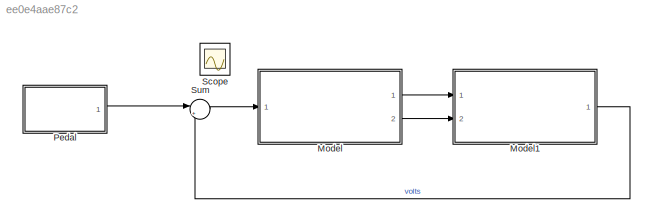
MODEL slx_ee0e4aae87c2
KIND model
CONFIG AbsTol = auto
CONFIG EnableMultiTasking = off
CONFIG FixedStep = auto
CONFIG MaxStep = auto
CONFIG MinStep = auto
CONFIG PreLoadFcn = etc_plant_data;\ndegConv = 180/pi;
CONFIG RelTol = 1e-3
CONFIG SampleTimeConstraint = Unconstrained
CONFIG Solver = ode45
CONFIG SolverName = ode45
CONFIG StartTime = 0.0
CONFIG StopTime = 20.0
BLOCK [ModelReference] Model
  ModelNameDialog = etc_ctrl_mdlwork
  ModelReferenceVersion = 1.74
  Ports = [1, 2]
BLOCK [ModelReference] Model1
  ModelNameDialog = etc_throttle_start
  ModelReferenceVersion = 1.78
  Ports = [2, 1]
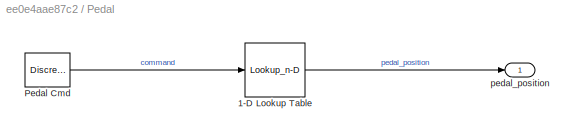
BLOCK [SubSystem] Pedal
  Ports = [0, 1]
  RequestExecContextInheritance = off
BLOCK [Lookup_n-D] Pedal/1-D Lookup Table
  BreakpointsForDimension1 = [0 1]
  NumberOfTableDimensions = 1
  Ports = [1, 1]
  RndMeth = Simplest
  Table = [0.5 4.5]
BLOCK [DiscretePulseGenerator] Pedal/Pedal Cmd
  Amplitude = 0.9
  Period = 10
  PhaseDelay = 2.5
  Ports = [0, 1]
  PulseType = Time based
  PulseWidth = 50
BLOCK [Outport] Pedal/pedal_position
  IconDisplay = Port number
BLOCK [Scope] Scope
  Floating = off
  IOType = viewer
  NumInputPorts = 1
  Ports = []
  ScopeSpecificationString = Simulink.scopes.TimeScopeBlockCfg('CurrentConfiguration', extmgr.ConfigurationSet(extmgr.Configuration('Core','General UI',true),extmgr.Configuration('Core','Source UI',true),extmgr.Configuration('Sources','WiredSimulink',true,'DataLoggingSaveFormat','StructureWithTime','DataLoggingLimitDataPoints',true,'DataLoggingDecimation','1','DataLoggingDecimateData',true),extmgr.Configuration('Visuals','Tim...<+2026ch>
BLOCK [Sum] Sum
  IconShape = round
  InputSameDT = off
  Inputs = |+-
  OutDataTypeStr = Inherit: Inherit via internal rule
  Ports = [2, 1]
  SaturateOnIntegerOverflow = off
LINE Model1:1 -> Sum:2
LINE Model:1 -> Model1:1
LINE Model:2 -> Model1:2
LINE Pedal/1-D Lookup Table:1 -> Pedal/pedal_position:1
LINE Pedal/Pedal Cmd:1 -> Pedal/1-D Lookup Table:1
LINE Pedal:1 -> Sum:1
LINE Sum:1 -> Model:1
